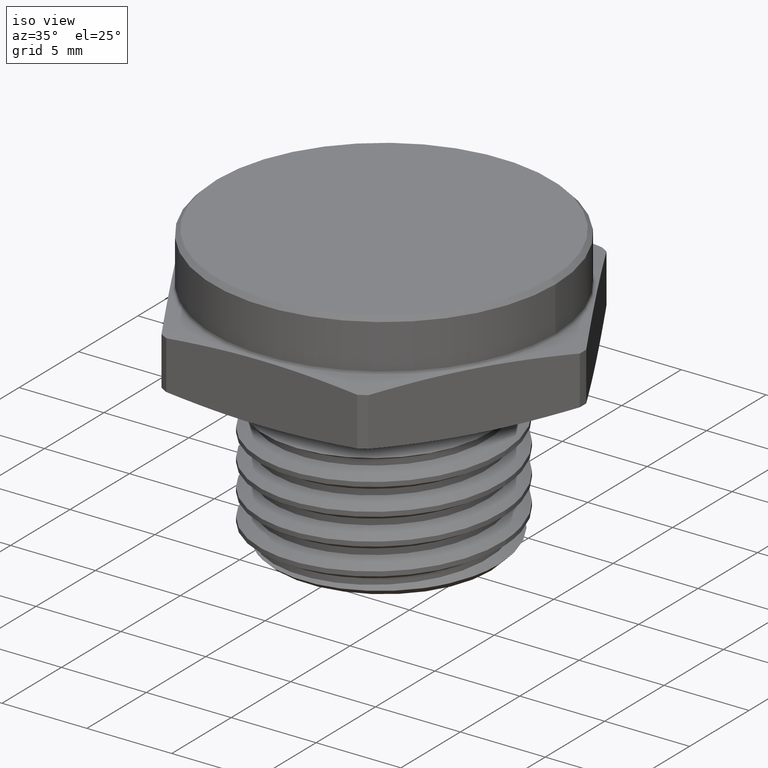
[diagram: clean part render]
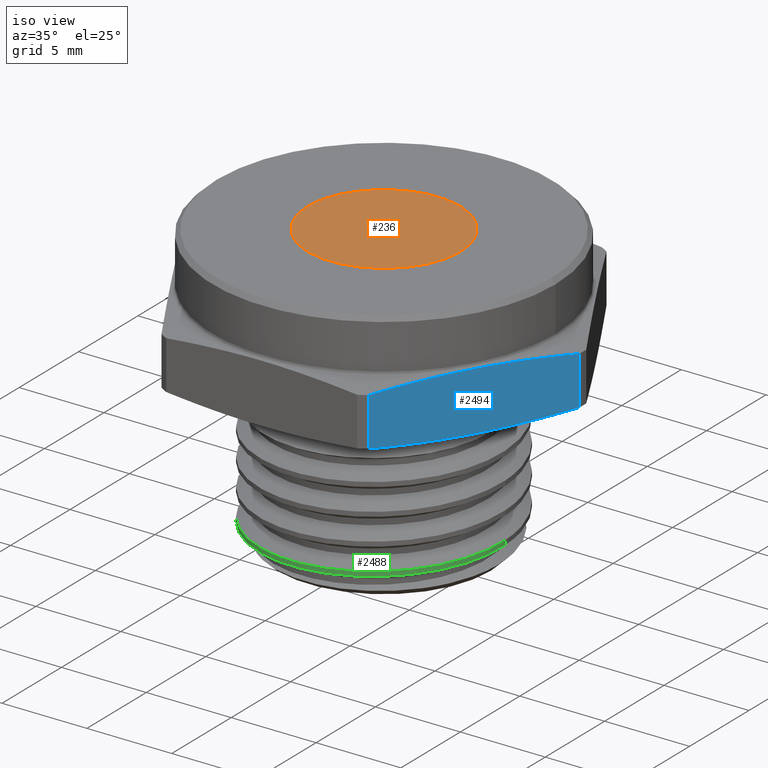
[diagram: same view with three faces highlighted in distinct colors, each labeled with its STEP entity id]
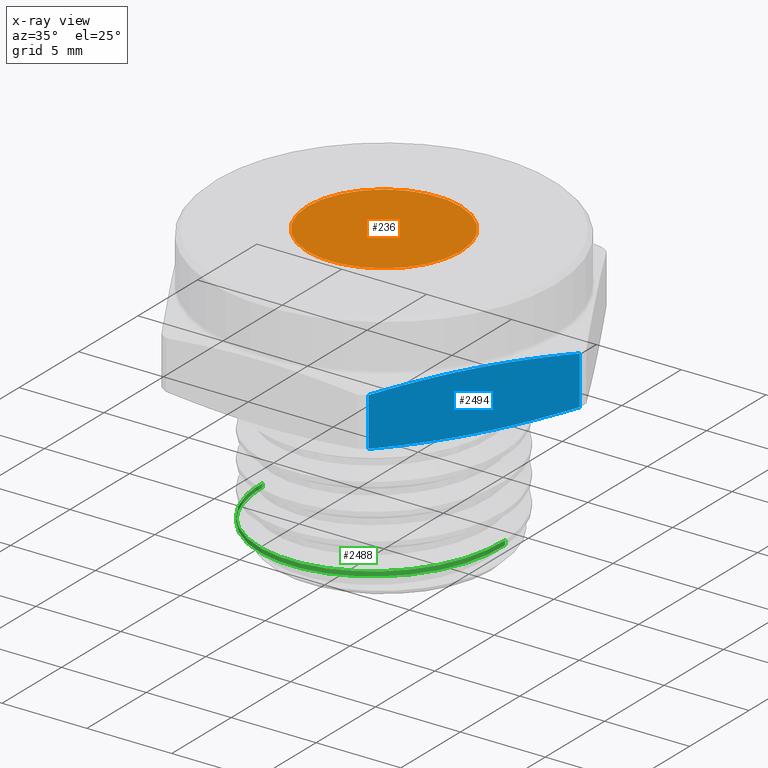
[diagram: x-ray of the same camera — body ghosted, the three highlighted faces saturated]
A machine part, iso view with three faces highlighted in distinct colors.
The next image is the same camera in x-ray (body ghosted, the three faces saturated) — at least one of them is partly hidden behind the body in this view.
Their STEP definitions:

[orange] entity #236 — the highlighted planar face has unit normal (0, 0, 1).
#17 = FACE_OUTER_BOUND ( 'NONE', #1971, .T. ) ;
#196 = AXIS2_PLACEMENT_3D ( 'NONE', #1083, #1084, #1085 ) ;
#198 = AXIS2_PLACEMENT_3D ( 'NONE', #1089, #1090, #1091 ) ;
#236 = ADVANCED_FACE ( 'NONE', ( #17 ), #2737, .T. ) ;
#261 = VERTEX_POINT ( 'NONE', #2708 ) ;
#361 = VERTEX_POINT ( 'NONE', #722 ) ;
#722 = CARTESIAN_POINT ( 'NONE',  ( 0.1774999999999999900, 0.0000000000000000000, 0.2600000000000000100 ) ) ;
#1083 = CARTESIAN_POINT ( 'NONE',  ( 0.0000000000000000000, 0.0000000000000000000, 0.2600000000000000100 ) ) ;
#1084 = DIRECTION ( 'NONE',  ( 0.0000000000000000000, 0.0000000000000000000, 1.000000000000000000 ) ) ;
#1085 = DIRECTION ( 'NONE',  ( 1.000000000000000000, 0.0000000000000000000, 0.0000000000000000000 ) ) ;
#1089 = CARTESIAN_POINT ( 'NONE',  ( 0.0000000000000000000, 0.0000000000000000000, 0.2600000000000000100 ) ) ;
#1090 = DIRECTION ( 'NONE',  ( 0.0000000000000000000, 0.0000000000000000000, 1.000000000000000000 ) ) ;
#1091 = DIRECTION ( 'NONE',  ( 1.000000000000000000, 0.0000000000000000000, 0.0000000000000000000 ) ) ;
#1967 = ORIENTED_EDGE ( 'NONE', *, *, #2247, .T. ) ;
#1968 = ORIENTED_EDGE ( 'NONE', *, *, #2250, .T. ) ;
#1971 = EDGE_LOOP ( 'NONE', ( #1967, #1968 ) ) ;
#2247 = EDGE_CURVE ( 'NONE', #361, #261, #2423, .T. ) ;
#2250 = EDGE_CURVE ( 'NONE', #261, #361, #2427, .T. ) ;
#2268 = AXIS2_PLACEMENT_3D ( 'NONE', #2735, #2730, #2729 ) ;
#2423 = CIRCLE ( 'NONE', #196, 0.1774999999999999900 ) ;
#2427 = CIRCLE ( 'NONE', #198, 0.1774999999999999900 ) ;
#2708 = CARTESIAN_POINT ( 'NONE',  ( -0.1774999999999999900, 2.173748068486551400E-017, 0.2600000000000000100 ) ) ;
#2729 = DIRECTION ( 'NONE',  ( 1.000000000000000000, 0.0000000000000000000, -0.0000000000000000000 ) ) ;
#2730 = DIRECTION ( 'NONE',  ( 0.0000000000000000000, 0.0000000000000000000, 1.000000000000000000 ) ) ;
#2735 = CARTESIAN_POINT ( 'NONE',  ( 0.0000000000000000000, 0.0000000000000000000, 0.2600000000000000100 ) ) ;
#2737 = PLANE ( 'NONE',  #2268 ) ;

[blue] entity #2494 — the highlighted planar face has unit normal (-0.866, 0.5, 0).
#211 = AXIS2_PLACEMENT_3D ( 'NONE', #1148, #1152, #1153 ) ;
#254 = VERTEX_POINT ( 'NONE', #2717 ) ;
#260 = VERTEX_POINT ( 'NONE', #2709 ) ;
#304 = EDGE_LOOP ( 'NONE', ( #2326, #2327, #2328, #2329 ) ) ;
#365 = VERTEX_POINT ( 'NONE', #729 ) ;
#366 = VERTEX_POINT ( 'NONE', #726 ) ;
#726 = CARTESIAN_POINT ( 'NONE',  ( 0.2399486424312466100, -0.3943967601019037200, 0.1263637062743045200 ) ) ;
#729 = CARTESIAN_POINT ( 'NONE',  ( 0.2399486424312466400, -0.3943967601019038300, 0.01363629372569551700 ) ) ;
#1146 = PLANE ( 'NONE',  #211 ) ;
#1148 = CARTESIAN_POINT ( 'NONE',  ( 0.2338268590217984500, -0.4050000000000003000, 0.1400000000000000100 ) ) ;
#1152 = DIRECTION ( 'NONE',  ( -0.8660254037844391500, 0.4999999999999992200, 0.0000000000000000000 ) ) ;
#1153 = DIRECTION ( 'NONE',  ( -0.4999999999999991700, -0.8660254037844390400, 0.0000000000000000000 ) ) ;
#1437 = CARTESIAN_POINT ( 'NONE',  ( 0.4615319346341489900, -0.01060323989809556200, -1.356806347704081000E-017 ) ) ;
#1438 = DIRECTION ( 'NONE',  ( -1.224646799147349800E-016, -0.0000000000000000000, -1.000000000000000000 ) ) ;
#1442 = CARTESIAN_POINT ( 'NONE',  ( 0.2768791911317303200, -0.3304311734012691000, 0.1338991866869405100 ) ) ;
#1446 = CARTESIAN_POINT ( 'NONE',  ( 0.2399486424312466100, -0.3943967601019037200, 0.1263637062743045200 ) ) ;
#1447 = CARTESIAN_POINT ( 'NONE',  ( 0.4246013859336652500, -0.07456882659873033400, 0.006100813313059473400 ) ) ;
#1448 = CARTESIAN_POINT ( 'NONE',  ( 0.3507402885326976700, -0.2024999999999996800, 0.1429124648880090400 ) ) ;
#1449 = CARTESIAN_POINT ( 'NONE',  ( 0.4246013859336654200, -0.07456882659873032000, 0.1338991866869405600 ) ) ;
#1450 = CARTESIAN_POINT ( 'NONE',  ( 0.4615319346341489300, -0.01060323989809555800, 0.1263637062743044900 ) ) ;
#1451 = CARTESIAN_POINT ( 'NONE',  ( 0.2399486424312466400, -0.3943967601019038300, 1.356806347704081000E-017 ) ) ;
#1452 = CARTESIAN_POINT ( 'NONE',  ( 0.4615319346341489300, -0.01060323989809555800, 0.01363629372569551700 ) ) ;
#1453 = DIRECTION ( 'NONE',  ( 1.224646799147349800E-016, 0.0000000000000000000, 1.000000000000000000 ) ) ;
#1456 = CARTESIAN_POINT ( 'NONE',  ( 0.3507402885326977300, -0.2024999999999999000, -0.002912464888009015700 ) ) ;
#1457 = CARTESIAN_POINT ( 'NONE',  ( 0.2768791911317303200, -0.3304311734012692100, 0.006100813313059502000 ) ) ;
#1458 = CARTESIAN_POINT ( 'NONE',  ( 0.2399486424312466400, -0.3943967601019038300, 0.01363629372569551700 ) ) ;
#2053 = B_SPLINE_CURVE_WITH_KNOTS ( 'NONE', 3,
 ( #1446, #1442, #1448, #1449, #1450 ),
 .UNSPECIFIED., .F., .F.,
 ( 4, 1, 4 ),
 ( 1.960092708429071200E-006, 0.005630175714662156100, 0.01125839133661588200 ),
 .UNSPECIFIED. ) ;
#2054 = B_SPLINE_CURVE_WITH_KNOTS ( 'NONE', 3,
 ( #1452, #1447, #1456, #1457, #1458 ),
 .UNSPECIFIED., .F., .F.,
 ( 4, 1, 4 ),
 ( 1.960092707715347300E-006, 0.005630175714661443200, 0.01125839133661517100 ),
 .UNSPECIFIED. ) ;
#2116 = LINE ( 'NONE', #1437, #2118 ) ;
#2118 = VECTOR ( 'NONE', #1438, 39.37007874015748100 ) ;
#2119 = LINE ( 'NONE', #1451, #2120 ) ;
#2120 = VECTOR ( 'NONE', #1453, 39.37007874015748100 ) ;
#2213 = EDGE_CURVE ( 'NONE', #260, #254, #2116, .T. ) ;
#2214 = EDGE_CURVE ( 'NONE', #366, #260, #2053, .T. ) ;
#2215 = EDGE_CURVE ( 'NONE', #365, #366, #2119, .T. ) ;
#2216 = EDGE_CURVE ( 'NONE', #254, #365, #2054, .T. ) ;
#2326 = ORIENTED_EDGE ( 'NONE', *, *, #2213, .F. ) ;
#2327 = ORIENTED_EDGE ( 'NONE', *, *, #2214, .F. ) ;
#2328 = ORIENTED_EDGE ( 'NONE', *, *, #2215, .F. ) ;
#2329 = ORIENTED_EDGE ( 'NONE', *, *, #2216, .F. ) ;
#2433 = FACE_OUTER_BOUND ( 'NONE', #304, .T. ) ;
#2494 = ADVANCED_FACE ( 'NONE', ( #2433 ), #1146, .F. ) ;
#2709 = CARTESIAN_POINT ( 'NONE',  ( 0.4615319346341489300, -0.01060323989809555800, 0.1263637062743044900 ) ) ;
#2717 = CARTESIAN_POINT ( 'NONE',  ( 0.4615319346341489300, -0.01060323989809555800, 0.01363629372569551700 ) ) ;

[green] entity #2488 — the highlighted cylindrical surface (partial cylindrical patch) has radius 7.1438 mm, axis along (-0, -0, 1).
#182 = AXIS2_PLACEMENT_3D ( 'NONE', #1331, #1332, #1333 ) ;
#204 = AXIS2_PLACEMENT_3D ( 'NONE', #1130, #1131, #1129 ) ;
#249 = VERTEX_POINT ( 'NONE', #2722 ) ;
#250 = VERTEX_POINT ( 'NONE', #2721 ) ;
#270 = VERTEX_POINT ( 'NONE', #2699 ) ;
#272 = VERTEX_POINT ( 'NONE', #2697 ) ;
#305 = EDGE_LOOP ( 'NONE', ( #2357, #2358, #2373, #2374, #2375 ) ) ;
#1112 = CARTESIAN_POINT ( 'NONE',  ( -0.2812500000000000000, -1.156014491658903800E-016, -0.3483017395986001700 ) ) ;
#1129 = DIRECTION ( 'NONE',  ( 1.000000000000000000, 0.0000000000000000000, 0.0000000000000000000 ) ) ;
#1130 = CARTESIAN_POINT ( 'NONE',  ( 0.0000000000000000000, 0.0000000000000000000, -0.3900000000000000100 ) ) ;
#1131 = DIRECTION ( 'NONE',  ( -0.0000000000000000000, -0.0000000000000000000, 1.000000000000000000 ) ) ;
#1245 = CARTESIAN_POINT ( 'NONE',  ( -0.2812500000000000600, 3.444319122601931000E-017, -0.3900000000000000100 ) ) ;
#1246 = DIRECTION ( 'NONE',  ( -0.0000000000000000000, -0.0000000000000000000, 1.000000000000000000 ) ) ;
#1276 = CARTESIAN_POINT ( 'NONE',  ( 0.2812500000000000600, 0.0000000000000000000, -0.3900000000000000100 ) ) ;
#1278 = DIRECTION ( 'NONE',  ( -0.0000000000000000000, -0.0000000000000000000, 1.000000000000000000 ) ) ;
#1317 = CARTESIAN_POINT ( 'NONE',  ( 0.2812500000000000000, 8.116029125503403500E-017, -0.3170517395986001100 ) ) ;
#1329 = CARTESIAN_POINT ( 'NONE',  ( 0.2812499999999999400, 8.116003072549823300E-017, -0.3274999979162772100 ) ) ;
#1330 = CARTESIAN_POINT ( 'NONE',  ( 0.2812500000000000000, -0.1164968999536188400, -0.3314062321618985700 ) ) ;
#1331 = CARTESIAN_POINT ( 'NONE',  ( 0.0000000000000000000, 0.0000000000000000000, -0.3569500000000038200 ) ) ;
#1332 = DIRECTION ( 'NONE',  ( -0.0000000000000000000, -0.0000000000000000000, 1.000000000000000000 ) ) ;
#1333 = DIRECTION ( 'NONE',  ( 1.000000000000000000, 0.0000000000000000000, 0.0000000000000000000 ) ) ;
#1334 = CARTESIAN_POINT ( 'NONE',  ( 0.2812499999999889500, -0.1164968999536299400, -0.3209579738442220300 ) ) ;
#1335 = CARTESIAN_POINT ( 'NONE',  ( 0.1988745842865448400, -0.1988729801276532300, -0.3353124598819326500 ) ) ;
#1336 = CARTESIAN_POINT ( 'NONE',  ( 0.1164986987281159000, -0.2812495301504512900, -0.3392187098819326500 ) ) ;
#1337 = CARTESIAN_POINT ( 'NONE',  ( 1.134311630388287200E-006, -0.2812499999977125500, -0.3431249598819325900 ) ) ;
#1338 = CARTESIAN_POINT ( 'NONE',  ( -0.1164964301048551400, -0.2812504698449738700, -0.3470312098819325900 ) ) ;
#1339 = CARTESIAN_POINT ( 'NONE',  ( -0.1988729801276532300, -0.1988745842865448400, -0.3509374598819326500 ) ) ;
#1340 = CARTESIAN_POINT ( 'NONE',  ( -0.2604508337825959300, -0.1372972273298696800, -0.3538574473149223000 ) ) ;
#1341 = CARTESIAN_POINT ( 'NONE',  ( -0.2764578979888980300, -0.05169712892956453100, -0.3569500000000037600 ) ) ;
#1344 = CARTESIAN_POINT ( 'NONE',  ( 0.1988745842865448400, -0.1988729801276532300, -0.3248642015642556100 ) ) ;
#1345 = CARTESIAN_POINT ( 'NONE',  ( 0.1164986987281159500, -0.2812495301504513400, -0.3287704515642555500 ) ) ;
#1346 = CARTESIAN_POINT ( 'NONE',  ( 1.134311630388287500E-006, -0.2812499999977126100, -0.3326767015642555500 ) ) ;
#1347 = CARTESIAN_POINT ( 'NONE',  ( -0.1164964301048551400, -0.2812504698449739300, -0.3365829515642556100 ) ) ;
#1348 = CARTESIAN_POINT ( 'NONE',  ( -0.1988729801276532300, -0.1988745842865448400, -0.3404892015642555500 ) ) ;
#1349 = CARTESIAN_POINT ( 'NONE',  ( -0.2812495301504513400, -0.1164986987281159500, -0.3443954515642556600 ) ) ;
#1350 = CARTESIAN_POINT ( 'NONE',  ( -0.2812499999977126100, -1.134311630405509100E-006, -0.3483017015642555500 ) ) ;
#1351 = CARTESIAN_POINT ( 'NONE',  ( -0.2812499999999999400, -5.671555235085495500E-007, -0.3483017205814217300 ) ) ;
#1352 = CARTESIAN_POINT ( 'NONE',  ( -0.2812500000000000000, -1.156014491658903800E-016, -0.3483017395986001700 ) ) ;
#2043 =( BOUNDED_CURVE ( )  B_SPLINE_CURVE ( 2, ( #1329, #1330, #1335, #1336, #1337, #1338, #1339, #1340, #1341 ),
 .UNSPECIFIED., .F., .F. ) 
 B_SPLINE_CURVE_WITH_KNOTS ( ( 3, 2, 2, 2, 3 ),
 ( 0.7142858083840617500, 0.7321428571428572100, 0.7500000000000000000, 0.7678571428571429000, 0.7814672310337187300 ),
 .UNSPECIFIED. ) 
 CURVE ( )  GEOMETRIC_REPRESENTATION_ITEM ( )  RATIONAL_B_SPLINE_CURVE ( ( 0.9999991977694852000, 0.9238799336286578300, 1.000000000000000000, 0.9238795325112867400, 1.000000000000000000, 0.9238795325112867400, 1.000000000000000000, 0.9419836486244407300, 0.9724033549341928300 ) ) 
 REPRESENTATION_ITEM ( '' )  );
#2044 =( BOUNDED_CURVE ( )  B_SPLINE_CURVE ( 2, ( #1317, #1334, #1344, #1345, #1346, #1347, #1348, #1349, #1350, #1351, #1352 ),
 .UNSPECIFIED., .F., .T. ) 
 B_SPLINE_CURVE_WITH_KNOTS ( ( 3, 2, 2, 2, 2, 3 ),
 ( 0.5714286655269210600, 0.5892857142857143000, 0.6071428571428572100, 0.6250000000000000000, 0.6428571428571429000, 0.6428572369555387600 ),
 .UNSPECIFIED. ) 
 CURVE ( )  GEOMETRIC_REPRESENTATION_ITEM ( )  RATIONAL_B_SPLINE_CURVE ( ( 0.9999991977694662200, 0.9238799336286672700, 1.000000000000000000, 0.9238795325112867400, 1.000000000000000000, 0.9238795325112867400, 1.000000000000000000, 0.9238795325112867400, 1.000000000000000000, 0.9999995988824226200, 0.9999991977690725300 ) ) 
 REPRESENTATION_ITEM ( '' )  );
#2096 = LINE ( 'NONE', #1245, #2099 ) ;
#2099 = VECTOR ( 'NONE', #1246, 39.37007874015748100 ) ;
#2102 = LINE ( 'NONE', #1276, #2103 ) ;
#2103 = VECTOR ( 'NONE', #1278, 39.37007874015748100 ) ;
#2109 = CIRCLE ( 'NONE', #182, 0.2812500000000000000 ) ;
#2185 = EDGE_CURVE ( 'NONE', #250, #2474, #2096, .T. ) ;
#2190 = EDGE_CURVE ( 'NONE', #270, #249, #2102, .T. ) ;
#2199 = EDGE_CURVE ( 'NONE', #250, #272, #2109, .T. ) ;
#2200 = EDGE_CURVE ( 'NONE', #270, #272, #2043, .T. ) ;
#2201 = EDGE_CURVE ( 'NONE', #249, #2474, #2044, .T. ) ;
#2357 = ORIENTED_EDGE ( 'NONE', *, *, #2185, .F. ) ;
#2358 = ORIENTED_EDGE ( 'NONE', *, *, #2199, .T. ) ;
#2373 = ORIENTED_EDGE ( 'NONE', *, *, #2200, .F. ) ;
#2374 = ORIENTED_EDGE ( 'NONE', *, *, #2190, .T. ) ;
#2375 = ORIENTED_EDGE ( 'NONE', *, *, #2201, .T. ) ;
#2438 = FACE_OUTER_BOUND ( 'NONE', #305, .T. ) ;
#2443 = CYLINDRICAL_SURFACE ( 'NONE', #204, 0.2812500000000000600 ) ;
#2474 = VERTEX_POINT ( 'NONE', #1112 ) ;
#2488 = ADVANCED_FACE ( 'NONE', ( #2438 ), #2443, .T. ) ;
#2697 = CARTESIAN_POINT ( 'NONE',  ( -0.2764578979888980300, -0.05169712892956453100, -0.3569500000000037600 ) ) ;
#2699 = CARTESIAN_POINT ( 'NONE',  ( 0.2812499999999999400, 8.116003072549823300E-017, -0.3274999979162772100 ) ) ;
#2721 = CARTESIAN_POINT ( 'NONE',  ( -0.2812500000000000000, 3.444319122601930400E-017, -0.3569500000000038200 ) ) ;
#2722 = CARTESIAN_POINT ( 'NONE',  ( 0.2812500000000000000, 8.116029125503403500E-017, -0.3170517395986001100 ) ) ;